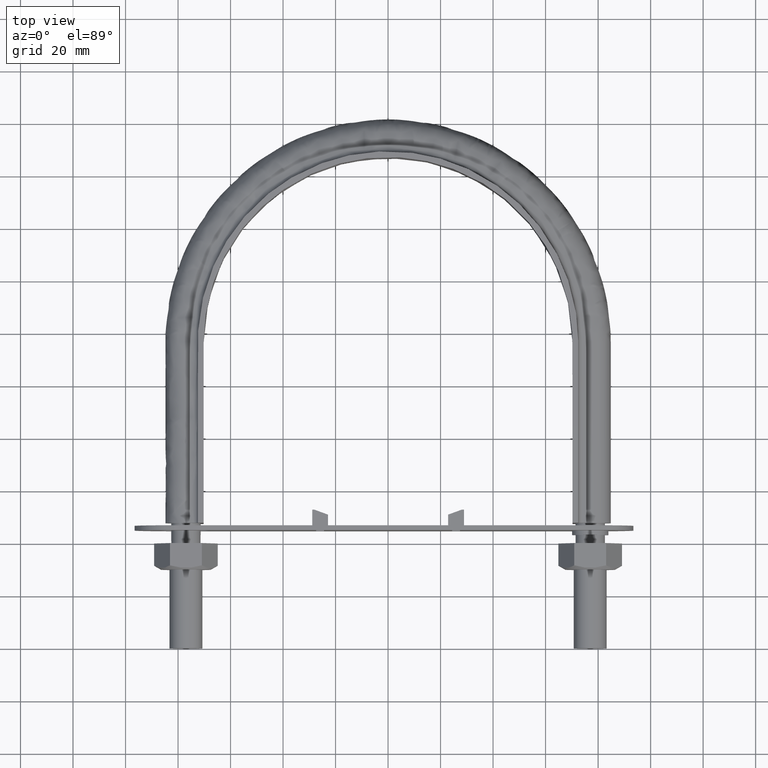
[diagram: clean part render]
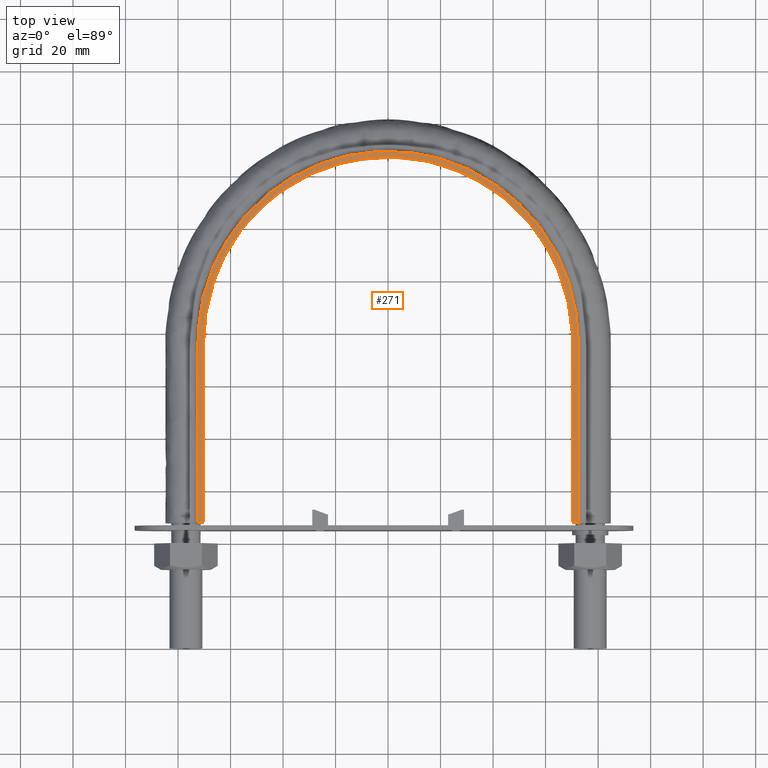
[diagram: same view with one face highlighted and labeled with its STEP entity id]
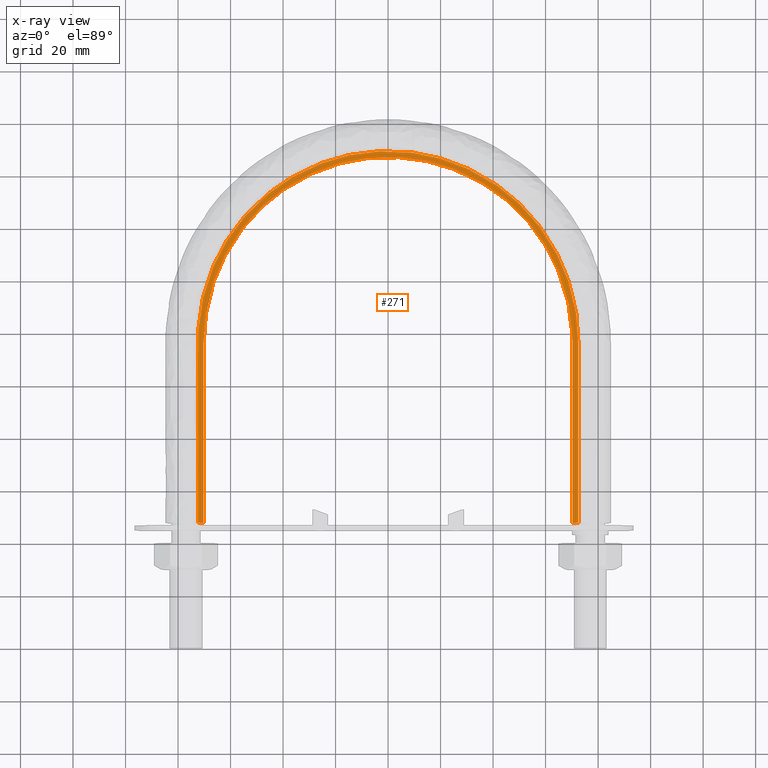
[diagram: x-ray of the same camera — body ghosted, the highlighted face saturated]
A machine part, top view. The second image highlights one B-rep face of the part: STEP entity #271.
The next image is the same camera in x-ray: the body ghosted, the highlighted face saturated — about 0% of this face is hidden behind the body in this view.
In plain terms, the highlighted planar face has unit normal (0, 0, 1).
Its self-contained STEP definition (entity closure, byte-faithful):
#271 = ADVANCED_FACE( '', ( #355 ), #356, .T. );
#355 = FACE_OUTER_BOUND( '', #543, .T. );
#356 = PLANE( '', #544 );
#543 = EDGE_LOOP( '', ( #1609, #1610, #1611, #1612 ) );
#544 = AXIS2_PLACEMENT_3D( '', #1613, #1614, #1615 );
#1609 = ORIENTED_EDGE( '', *, *, #2143, .T. );
#1610 = ORIENTED_EDGE( '', *, *, #2153, .T. );
#1611 = ORIENTED_EDGE( '', *, *, #2152, .T. );
#1612 = ORIENTED_EDGE( '', *, *, #2154, .F. );
#1613 = CARTESIAN_POINT( '', ( 100.000000000000, 247.710000000000, 15.0000000000000 ) );
#1614 = DIRECTION( '', ( 0.000000000000000, 0.000000000000000, 1.00000000000000 ) );
#1615 = DIRECTION( '', ( 1.22460635382238E-016, 1.00000000000000, 0.000000000000000 ) );
#2143 = EDGE_CURVE( '', #2316, #2314, #2317, .T. );
#2152 = EDGE_CURVE( '', #2328, #2330, #2332, .T. );
#2153 = EDGE_CURVE( '', #2314, #2328, #2333, .T. );
#2154 = EDGE_CURVE( '', #2316, #2330, #2334, .F. );
#2314 = VERTEX_POINT( '', #2620 );
#2316 = VERTEX_POINT( '', #2623 );
#2317 = LINE( '', #2624, #2625 );
#2328 = VERTEX_POINT( '', #2708 );
#2330 = VERTEX_POINT( '', #2711 );
#2332 = LINE( '', #2743, #2744 );
#2333 = B_SPLINE_CURVE_WITH_KNOTS( '', 3, ( #2745, #2746, #2747, #2748, #2749, #2750, #2751, #2752, #2753, #2754, #2755, #2756, #2757, #2758, #2759, #2760 ), .UNSPECIFIED., .F., .F., ( 4, 3, 1, 1, 1, 1, 1, 1, 3, 4 ), ( -9.00000000000000, -8.00000000000000, -7.00000000000000, -6.00000000000000, -5.00000000000000, -4.00000000000000, -3.00000000000000, -2.00000000000000, -1.00000000000000, 0.000000000000000 ), .UNSPECIFIED. );
#2334 = B_SPLINE_CURVE_WITH_KNOTS( '', 3, ( #2761, #2762, #2763, #2764, #2765, #2766, #2767, #2768, #2769, #2770, #2771, #2772, #2773, #2774, #2775, #2776 ), .UNSPECIFIED., .F., .F., ( 4, 3, 1, 1, 1, 1, 1, 1, 3, 4 ), ( 0.000000000000000, 1.00000000000000, 2.00000000000000, 3.00000000000000, 4.00000000000000, 5.00000000000000, 6.00000000000000, 7.00000000000000, 8.00000000000000, 9.00000000000000 ), .UNSPECIFIED. );
#2620 = CARTESIAN_POINT( '', ( -70.2500000000000, 47.7100000000000, 15.0000000000000 ) );
#2623 = CARTESIAN_POINT( '', ( -72.4500000000000, 47.7100000000000, 15.0000000000000 ) );
#2624 = CARTESIAN_POINT( '', ( -100.000000000000, 47.7100000000000, 15.0000000000000 ) );
#2625 = VECTOR( '', #3326, 1000.00000000000 );
#2708 = CARTESIAN_POINT( '', ( 70.2500000000000, 47.7100000000000, 15.0000000000000 ) );
#2711 = CARTESIAN_POINT( '', ( 72.4500000000000, 47.7100000000000, 15.0000000000000 ) );
#2743 = CARTESIAN_POINT( '', ( -100.000000000000, 47.7100000000000, 15.0000000000000 ) );
#2744 = VECTOR( '', #3330, 1000.00000000000 );
#2745 = CARTESIAN_POINT( '', ( -70.2500000000000, 47.7100000000000, 15.0000000000000 ) );
#2746 = CARTESIAN_POINT( '', ( -70.2500000000000, 70.7266666666667, 15.0000000000000 ) );
#2747 = CARTESIAN_POINT( '', ( -70.2500000000000, 93.7433333333333, 15.0000000000000 ) );
#2748 = CARTESIAN_POINT( '', ( -70.2500000000000, 116.760000000000, 15.0000000000000 ) );
#2749 = CARTESIAN_POINT( '', ( -70.2500000000000, 127.249418134732, 15.0000000000000 ) );
#2750 = CARTESIAN_POINT( '', ( -65.4537147955432, 148.288971927909, 15.0000000000000 ) );
#2751 = CARTESIAN_POINT( '', ( -45.2953760364684, 173.556467088273, 15.0000000000000 ) );
#2752 = CARTESIAN_POINT( '', ( -16.1657325420394, 187.587129579273, 15.0000000000000 ) );
#2753 = CARTESIAN_POINT( '', ( 16.1657325420395, 187.587129579273, 15.0000000000000 ) );
#2754 = CARTESIAN_POINT( '', ( 45.2953760364684, 173.556467088273, 15.0000000000000 ) );
#2755 = CARTESIAN_POINT( '', ( 65.4537147955432, 148.288971927909, 15.0000000000000 ) );
#2756 = CARTESIAN_POINT( '', ( 70.2500000000000, 127.249418134732, 15.0000000000000 ) );
#2757 = CARTESIAN_POINT( '', ( 70.2500000000000, 116.760000000000, 15.0000000000000 ) );
#2758 = CARTESIAN_POINT( '', ( 70.2500000000000, 93.7433333333333, 15.0000000000000 ) );
#2759 = CARTESIAN_POINT( '', ( 70.2500000000000, 70.7266666666667, 15.0000000000000 ) );
#2760 = CARTESIAN_POINT( '', ( 70.2500000000000, 47.7100000000000, 15.0000000000000 ) );
#2761 = CARTESIAN_POINT( '', ( 72.4500000000000, 47.7100000000000, 15.0000000000000 ) );
#2762 = CARTESIAN_POINT( '', ( 72.4500000000000, 70.7266666666667, 15.0000000000000 ) );
#2763 = CARTESIAN_POINT( '', ( 72.4500000000000, 93.7433333333333, 15.0000000000000 ) );
#2764 = CARTESIAN_POINT( '', ( 72.4500000000000, 116.760000000000, 15.0000000000000 ) );
#2765 = CARTESIAN_POINT( '', ( 72.4500000000000, 127.584175230504, 15.0000000000000 ) );
#2766 = CARTESIAN_POINT( '', ( 67.5035108460798, 149.273453800089, 15.0000000000000 ) );
#2767 = CARTESIAN_POINT( '', ( 46.7138789159023, 175.335910248336, 15.0000000000000 ) );
#2768 = CARTESIAN_POINT( '', ( 16.6719903583027, 189.805050635421, 15.0000000000000 ) );
#2769 = CARTESIAN_POINT( '', ( -16.6719903583026, 189.805050635421, 15.0000000000000 ) );
#2770 = CARTESIAN_POINT( '', ( -46.7138789159022, 175.335910248336, 15.0000000000000 ) );
#2771 = CARTESIAN_POINT( '', ( -67.5035108460798, 149.273453800089, 15.0000000000000 ) );
#2772 = CARTESIAN_POINT( '', ( -72.4500000000000, 127.584175230504, 15.0000000000000 ) );
#2773 = CARTESIAN_POINT( '', ( -72.4500000000000, 116.760000000000, 15.0000000000000 ) );
#2774 = CARTESIAN_POINT( '', ( -72.4500000000000, 93.7433333333333, 15.0000000000000 ) );
#2775 = CARTESIAN_POINT( '', ( -72.4500000000000, 70.7266666666667, 15.0000000000000 ) );
#2776 = CARTESIAN_POINT( '', ( -72.4500000000000, 47.7100000000000, 15.0000000000000 ) );
#3326 = DIRECTION( '', ( 1.00000000000000, -1.22460635382238E-016, 0.000000000000000 ) );
#3330 = DIRECTION( '', ( 1.00000000000000, -1.22460635382238E-016, 0.000000000000000 ) );